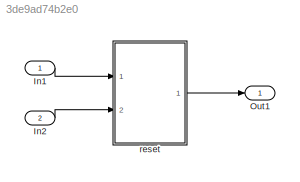
MODEL slx_3de9ad74b2e0
KIND model
CONFIG AbsTol = auto
CONFIG EnableMultiTasking = off
CONFIG FixedStep = auto
CONFIG MaxStep = auto
CONFIG MinStep = auto
CONFIG RelTol = 1e-3
CONFIG SampleTimeConstraint = Unconstrained
CONFIG Solver = FixedStepDiscrete
CONFIG SolverName = FixedStepDiscrete
CONFIG StartTime = 0.0
CONFIG StopTime = 10.0
BLOCK [Inport] In1
  IconDisplay = Port number
BLOCK [Inport] In2
  IconDisplay = Port number
  Port = 2
BLOCK [Outport] Out1
  IconDisplay = Port number
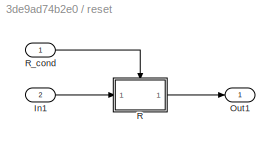
BLOCK [SubSystem] reset
  AncestorBlock = Block_TestLib/reset
  Ports = [2, 1]
  RequestExecContextInheritance = off
  Variant = off
BLOCK [Inport] reset/In1
  IconDisplay = Port number
  Port = 2
BLOCK [Outport] reset/Out1
  IconDisplay = Port number
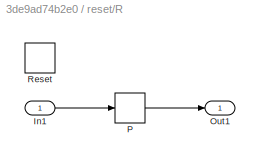
BLOCK [SubSystem] reset/R
  Ports = [1, 1, 0, 0, 0, 0, 0, 0, 1]
  RequestExecContextInheritance = off
  TreatAsAtomicUnit = on
  Variant = off
BLOCK [Inport] reset/R/In1
  IconDisplay = Port number
  PortDimensions = 2
BLOCK [Outport] reset/R/Out1
  IconDisplay = Port number
BLOCK [Lookup_n-D] reset/R/P
  BreakpointsForDimension1FirstPoint = 23.5874
  BreakpointsForDimension1Spacing = 1.5
  BreakpointsForDimension2FirstPoint = 43.5551
  BreakpointsForDimension2Spacing = 1.5
  BreakpointsForDimension3 = [5, 7]
  BreakpointsSpecification = Even spacing
  InternalRulePriority = Speed
  InterpMethod = Flat
  Ports = [1, 1]
  RndMeth = Simplest
  Table = [120.511289118853 59.1593020880021 12.2681763288424 85.9903571920136 49.0048148335469;85.8289910062956 84.1633343456099 94.1159437650941 89.9791509510929 6.88697261064177;35.1715539364091 78.9367116880936 108.518066414808 12.2804152272259 100.274056469616]
  UseLastTableValue = on
  UseOneInputPortForAllInputData = on
BLOCK [ResetPort] reset/R/Reset
  DisableCoverage = on
BLOCK [Inport] reset/R_cond
  IconDisplay = Port number
  OutDataTypeStr = boolean
LINE In1:1 -> reset:1
LINE In2:1 -> reset:2
LINE reset:1 -> Out1:1
